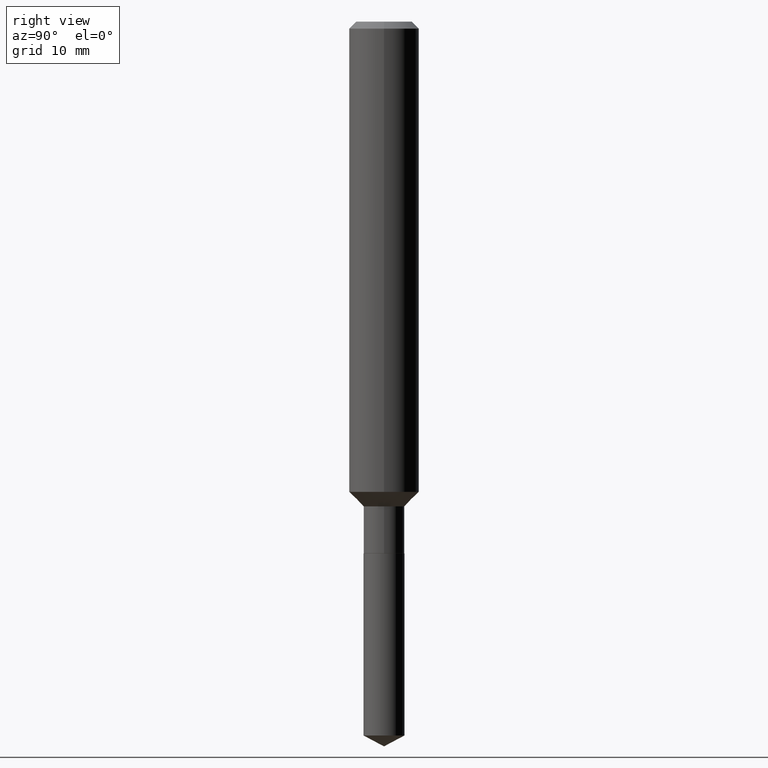
[diagram: clean part render]
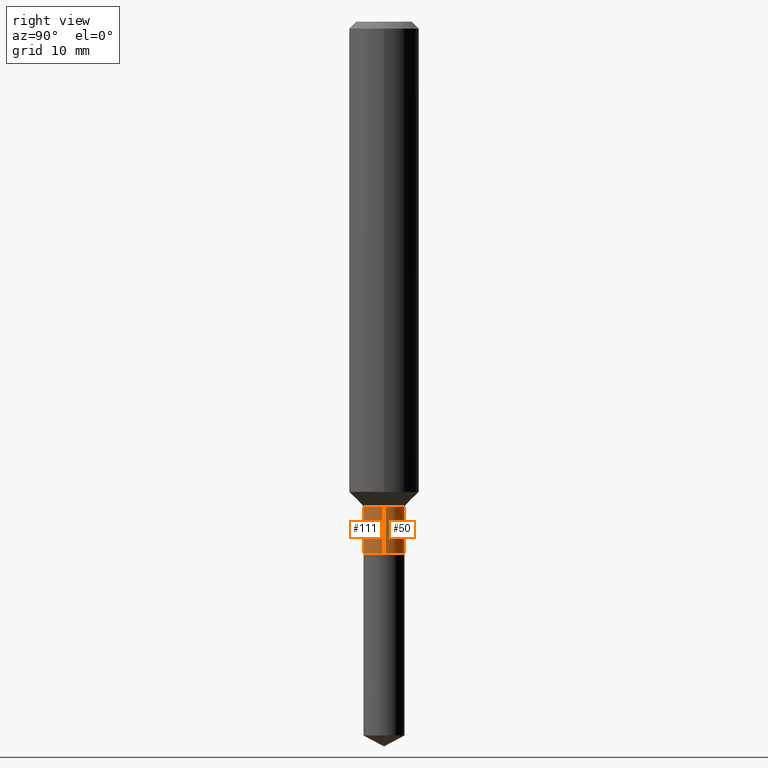
[diagram: same view with one multi-face feature highlighted, each face labeled with its STEP entity id]
A machine part, right view. The highlighted faces form ONE feature: a constant-radius fillet chain: 2 tangent blend faces with common blend radius 1.7501 mm. The faces share edges in the B-rep.
Their STEP definitions:
[1] entity #50 (Cylinder):
#39 = CARTESIAN_POINT ( 'NONE',  ( 0.000000000000000000, 0.000000000000000000, 0.000000000000000000 ) ) ;
#49 = CARTESIAN_POINT ( 'NONE',  ( 4.379345538116341578E-29, -6.252544781600304095E-15, -1.790799999999999725 ) ) ;
#50 = ADVANCED_FACE ( 'NONE', ( #77 ), #376, .T. ) ;
#57 = LINE ( 'NONE', #326, #66 ) ;
#66 = VECTOR ( 'NONE', #176, 39.37007874015748143 ) ;
#77 = FACE_OUTER_BOUND ( 'NONE', #279, .T. ) ;
#95 = ORIENTED_EDGE ( 'NONE', *, *, #410, .F. ) ;
#134 = AXIS2_PLACEMENT_3D ( 'NONE', #39, #267, #420 ) ;
#138 = DIRECTION ( 'NONE',  ( -2.445468806185136877E-29, 3.491481338843145188E-15, 1.000000000000000000 ) ) ;
#149 = EDGE_CURVE ( 'NONE', #413, #417, #192, .T. ) ;
#151 = AXIS2_PLACEMENT_3D ( 'NONE', #480, #395, #440 ) ;
#154 = VERTEX_POINT ( 'NONE', #246 ) ;
#162 = EDGE_CURVE ( 'NONE', #413, #222, #237, .T. ) ;
#166 = DIRECTION ( 'NONE',  ( -2.445468806185136597E-29, 3.491481338843145583E-15, 1.000000000000000000 ) ) ;
#176 = DIRECTION ( 'NONE',  ( -2.445468806185136877E-29, 3.491481338843145188E-15, 1.000000000000000000 ) ) ;
#192 = CIRCLE ( 'NONE', #242, 0.06890000000000001679 ) ;
#222 = VERTEX_POINT ( 'NONE', #269 ) ;
#237 = LINE ( 'NONE', #469, #407 ) ;
#242 = AXIS2_PLACEMENT_3D ( 'NONE', #49, #166, #477 ) ;
#246 = CARTESIAN_POINT ( 'NONE',  ( -0.06889999999999998903, -5.487153810892985946E-15, -1.632799999999999585 ) ) ;
#248 = CARTESIAN_POINT ( 'NONE',  ( -0.06890000000000001679, -5.487153810892985946E-15, -1.790799999999999725 ) ) ;
#263 = CIRCLE ( 'NONE', #151, 0.06889999999999998903 ) ;
#267 = DIRECTION ( 'NONE',  ( -2.445468806185136597E-29, 3.491481338843145583E-15, 1.000000000000000000 ) ) ;
#269 = CARTESIAN_POINT ( 'NONE',  ( 0.06889999999999998903, -6.182016858555670618E-15, -1.632799999999999585 ) ) ;
#279 = EDGE_LOOP ( 'NONE', ( #430, #402, #95, #393 ) ) ;
#316 = CARTESIAN_POINT ( 'NONE',  ( 0.06890000000000001679, -6.733670910092887834E-15, -1.790799999999999725 ) ) ;
#326 = CARTESIAN_POINT ( 'NONE',  ( -0.06890000000000000291, 4.895639449387090487E-16, -3.389146277185630017E-30 ) ) ;
#358 = EDGE_CURVE ( 'NONE', #417, #154, #57, .T. ) ;
#376 = CYLINDRICAL_SURFACE ( 'NONE', #134, 0.06890000000000000291 ) ;
#393 = ORIENTED_EDGE ( 'NONE', *, *, #162, .F. ) ;
#395 = DIRECTION ( 'NONE',  ( -2.445468806185136597E-29, 3.491481338843145583E-15, 1.000000000000000000 ) ) ;
#402 = ORIENTED_EDGE ( 'NONE', *, *, #358, .T. ) ;
#407 = VECTOR ( 'NONE', #138, 39.37007874015748143 ) ;
#410 = EDGE_CURVE ( 'NONE', #222, #154, #263, .T. ) ;
#413 = VERTEX_POINT ( 'NONE', #316 ) ;
#417 = VERTEX_POINT ( 'NONE', #248 ) ;
#420 = DIRECTION ( 'NONE',  ( 1.000000000000000000, -6.982962677686265922E-15, 4.876176775795934672E-29 ) ) ;
#430 = ORIENTED_EDGE ( 'NONE', *, *, #149, .T. ) ;
#440 = DIRECTION ( 'NONE',  ( 1.000000000000000000, -6.982962677686267499E-15, 0.000000000000000000 ) ) ;
#469 = CARTESIAN_POINT ( 'NONE',  ( 0.06890000000000000291, -4.811261284925837385E-16, 3.359685798523399268E-30 ) ) ;
#477 = DIRECTION ( 'NONE',  ( 1.000000000000000000, -6.982962677686264344E-15, 0.000000000000000000 ) ) ;
#480 = CARTESIAN_POINT ( 'NONE',  ( 3.992961466739089740E-29, -5.700890730063086880E-15, -1.632799999999999585 ) ) ;
[2] entity #111 (Cylinder):
#2 = ORIENTED_EDGE ( 'NONE', *, *, #162, .T. ) ;
#9 = CYLINDRICAL_SURFACE ( 'NONE', #335, 0.06890000000000000291 ) ;
#12 = ORIENTED_EDGE ( 'NONE', *, *, #117, .T. ) ;
#33 = DIRECTION ( 'NONE',  ( 1.000000000000000000, -6.982962677686267499E-15, 0.000000000000000000 ) ) ;
#54 = CARTESIAN_POINT ( 'NONE',  ( 0.000000000000000000, 0.000000000000000000, 0.000000000000000000 ) ) ;
#57 = LINE ( 'NONE', #326, #66 ) ;
#66 = VECTOR ( 'NONE', #176, 39.37007874015748143 ) ;
#87 = DIRECTION ( 'NONE',  ( -2.445468806185136597E-29, 3.491481338843145583E-15, 1.000000000000000000 ) ) ;
#90 = DIRECTION ( 'NONE',  ( 1.000000000000000000, -6.982962677686265922E-15, 4.876176775795934672E-29 ) ) ;
#111 = ADVANCED_FACE ( 'NONE', ( #353 ), #9, .T. ) ;
#117 = EDGE_CURVE ( 'NONE', #417, #413, #261, .T. ) ;
#138 = DIRECTION ( 'NONE',  ( -2.445468806185136877E-29, 3.491481338843145188E-15, 1.000000000000000000 ) ) ;
#154 = VERTEX_POINT ( 'NONE', #246 ) ;
#157 = DIRECTION ( 'NONE',  ( -2.445468806185136597E-29, 3.491481338843145583E-15, 1.000000000000000000 ) ) ;
#162 = EDGE_CURVE ( 'NONE', #413, #222, #237, .T. ) ;
#174 = ORIENTED_EDGE ( 'NONE', *, *, #250, .F. ) ;
#176 = DIRECTION ( 'NONE',  ( -2.445468806185136877E-29, 3.491481338843145188E-15, 1.000000000000000000 ) ) ;
#185 = CIRCLE ( 'NONE', #436, 0.06889999999999998903 ) ;
#189 = EDGE_LOOP ( 'NONE', ( #275, #12, #2, #174 ) ) ;
#222 = VERTEX_POINT ( 'NONE', #269 ) ;
#237 = LINE ( 'NONE', #469, #407 ) ;
#246 = CARTESIAN_POINT ( 'NONE',  ( -0.06889999999999998903, -5.487153810892985946E-15, -1.632799999999999585 ) ) ;
#248 = CARTESIAN_POINT ( 'NONE',  ( -0.06890000000000001679, -5.487153810892985946E-15, -1.790799999999999725 ) ) ;
#250 = EDGE_CURVE ( 'NONE', #154, #222, #185, .T. ) ;
#261 = CIRCLE ( 'NONE', #300, 0.06890000000000001679 ) ;
#269 = CARTESIAN_POINT ( 'NONE',  ( 0.06889999999999998903, -6.182016858555670618E-15, -1.632799999999999585 ) ) ;
#275 = ORIENTED_EDGE ( 'NONE', *, *, #358, .F. ) ;
#300 = AXIS2_PLACEMENT_3D ( 'NONE', #390, #157, #338 ) ;
#316 = CARTESIAN_POINT ( 'NONE',  ( 0.06890000000000001679, -6.733670910092887834E-15, -1.790799999999999725 ) ) ;
#326 = CARTESIAN_POINT ( 'NONE',  ( -0.06890000000000000291, 4.895639449387090487E-16, -3.389146277185630017E-30 ) ) ;
#335 = AXIS2_PLACEMENT_3D ( 'NONE', #54, #435, #90 ) ;
#338 = DIRECTION ( 'NONE',  ( 1.000000000000000000, -6.982962677686264344E-15, 0.000000000000000000 ) ) ;
#353 = FACE_OUTER_BOUND ( 'NONE', #189, .T. ) ;
#358 = EDGE_CURVE ( 'NONE', #417, #154, #57, .T. ) ;
#390 = CARTESIAN_POINT ( 'NONE',  ( 4.379345538116341578E-29, -6.252544781600304095E-15, -1.790799999999999725 ) ) ;
#407 = VECTOR ( 'NONE', #138, 39.37007874015748143 ) ;
#408 = CARTESIAN_POINT ( 'NONE',  ( 3.992961466739089740E-29, -5.700890730063086880E-15, -1.632799999999999585 ) ) ;
#413 = VERTEX_POINT ( 'NONE', #316 ) ;
#417 = VERTEX_POINT ( 'NONE', #248 ) ;
#435 = DIRECTION ( 'NONE',  ( -2.445468806185136597E-29, 3.491481338843145583E-15, 1.000000000000000000 ) ) ;
#436 = AXIS2_PLACEMENT_3D ( 'NONE', #408, #87, #33 ) ;
#469 = CARTESIAN_POINT ( 'NONE',  ( 0.06890000000000000291, -4.811261284925837385E-16, 3.359685798523399268E-30 ) ) ;